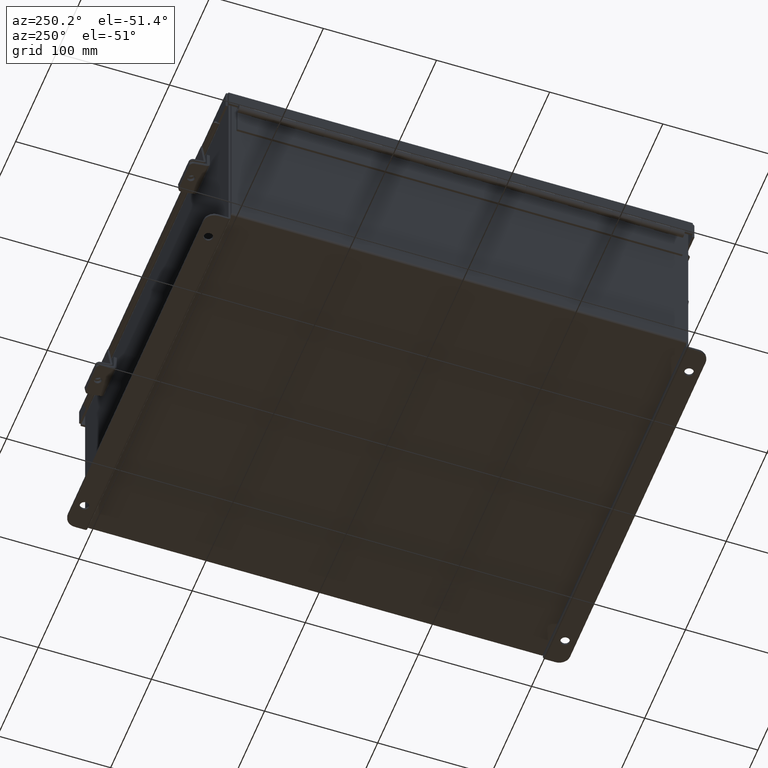
[diagram: clean part render]
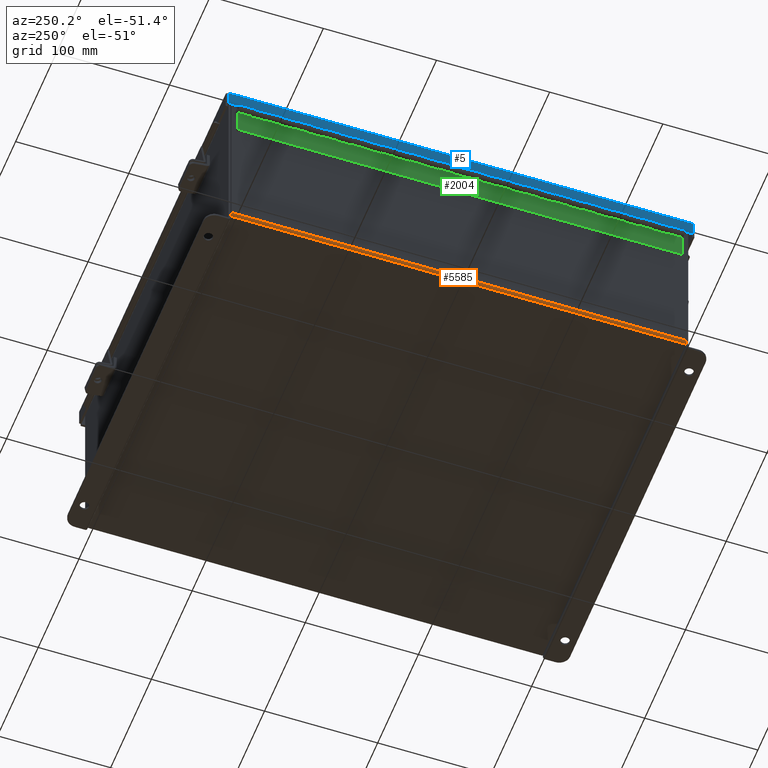
[diagram: same view with three faces highlighted in distinct colors, each labeled with its STEP entity id]
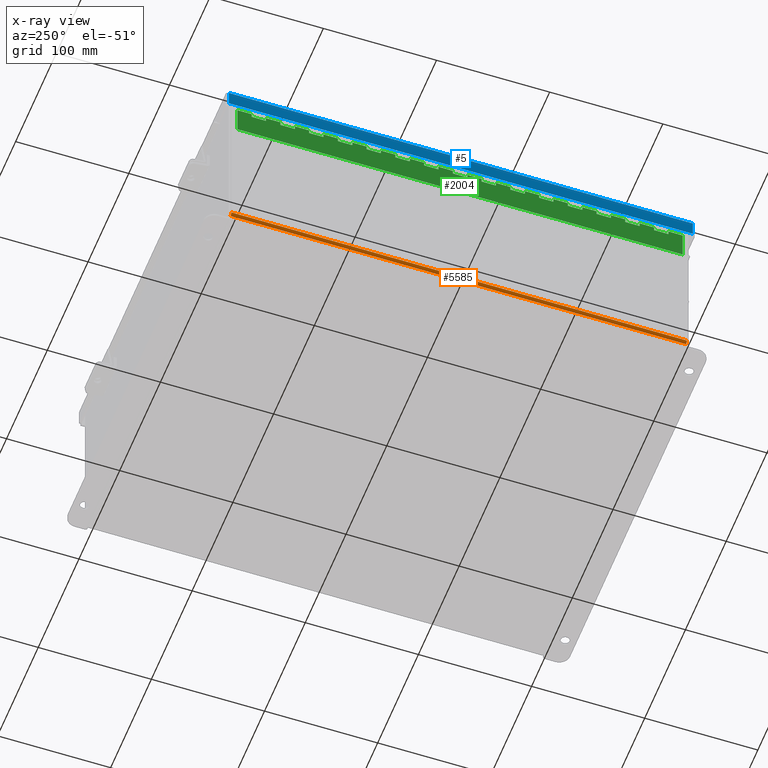
[diagram: x-ray of the same camera — body ghosted, the three highlighted faces saturated]
A machine part, auxiliary view with three faces highlighted in distinct colors.
The next image is the same camera in x-ray (body ghosted, the three faces saturated) — at least one of them is partly hidden behind the body in this view.
Their STEP definitions:

[orange] entity #5585 — the highlighted cylindrical surface (edge-blend (fillet) strip) has radius 2.2276 mm, axis along (0, -1, 0).
#46 = CIRCLE ( 'NONE', #12413, 0.08770000000000009700 ) ;
#344 = ORIENTED_EDGE ( 'NONE', *, *, #2056, .F. ) ;
#716 = ORIENTED_EDGE ( 'NONE', *, *, #1903, .T. ) ;
#849 = CARTESIAN_POINT ( 'NONE',  ( -6.912299999999999200, -7.925299999999997300, -0.07469999999999994700 ) ) ;
#977 = VECTOR ( 'NONE', #1708, 39.37007874015748100 ) ;
#1599 = VERTEX_POINT ( 'NONE', #849 ) ;
#1708 = DIRECTION ( 'NONE',  ( -0.0000000000000000000, 1.000000000000000000, -0.0000000000000000000 ) ) ;
#1779 = EDGE_CURVE ( 'NONE', #5769, #1599, #13642, .T. ) ;
#1903 = EDGE_CURVE ( 'NONE', #5769, #15856, #15826, .T. ) ;
#2056 = EDGE_CURVE ( 'NONE', #1599, #9275, #12905, .T. ) ;
#2108 = AXIS2_PLACEMENT_3D ( 'NONE', #7767, #12403, #6544 ) ;
#3784 = DIRECTION ( 'NONE',  ( -0.0000000000000000000, 1.000000000000000000, -0.0000000000000000000 ) ) ;
#3888 = CARTESIAN_POINT ( 'NONE',  ( -7.000000000000000000, 7.925300000000000900, 0.01299999999999984300 ) ) ;
#4531 = AXIS2_PLACEMENT_3D ( 'NONE', #13342, #4687, #15294 ) ;
#4687 = DIRECTION ( 'NONE',  ( 0.0000000000000000000, -1.000000000000000000, 0.0000000000000000000 ) ) ;
#5455 = ORIENTED_EDGE ( 'NONE', *, *, #13397, .F. ) ;
#5585 = ADVANCED_FACE ( 'NONE', ( #13981 ), #5708, .T. ) ;
#5708 = CYLINDRICAL_SURFACE ( 'NONE', #4531, 0.08770000000000026400 ) ;
#5769 = VERTEX_POINT ( 'NONE', #20010 ) ;
#6544 = DIRECTION ( 'NONE',  ( 0.0000000000000000000, 0.0000000000000000000, -1.000000000000000000 ) ) ;
#7001 = CARTESIAN_POINT ( 'NONE',  ( -6.912299999999999200, 7.925300000000000900, -0.07470000000000000300 ) ) ;
#7767 = CARTESIAN_POINT ( 'NONE',  ( -6.912299999999999200, -7.925299999999997300, 0.01300000000000015000 ) ) ;
#9076 = CARTESIAN_POINT ( 'NONE',  ( -6.912299999999999200, -7.925299999999998200, -0.07469999999999994700 ) ) ;
#9275 = VERTEX_POINT ( 'NONE', #7001 ) ;
#11174 = CARTESIAN_POINT ( 'NONE',  ( -7.000000000000000000, 7.925300000000000900, 0.01299999999999984300 ) ) ;
#11221 = VECTOR ( 'NONE', #16618, 39.37007874015748100 ) ;
#12190 = ORIENTED_EDGE ( 'NONE', *, *, #1779, .F. ) ;
#12403 = DIRECTION ( 'NONE',  ( 0.0000000000000000000, -1.000000000000000000, 0.0000000000000000000 ) ) ;
#12413 = AXIS2_PLACEMENT_3D ( 'NONE', #13118, #3784, #14658 ) ;
#12905 = LINE ( 'NONE', #9076, #977 ) ;
#13118 = CARTESIAN_POINT ( 'NONE',  ( -6.912299999999999200, 7.925300000000000900, 0.01300000000000015000 ) ) ;
#13342 = CARTESIAN_POINT ( 'NONE',  ( -6.912299999999999200, -7.925299999999998200, 0.01300000000000015000 ) ) ;
#13397 = EDGE_CURVE ( 'NONE', #9275, #15856, #46, .T. ) ;
#13642 = CIRCLE ( 'NONE', #2108, 0.08770000000000009700 ) ;
#13981 = FACE_OUTER_BOUND ( 'NONE', #19122, .T. ) ;
#14658 = DIRECTION ( 'NONE',  ( 0.0000000000000000000, 0.0000000000000000000, -1.000000000000000000 ) ) ;
#15294 = DIRECTION ( 'NONE',  ( -1.000000000000000000, 0.0000000000000000000, -3.553037762569317100E-015 ) ) ;
#15826 = LINE ( 'NONE', #11174, #11221 ) ;
#15856 = VERTEX_POINT ( 'NONE', #3888 ) ;
#16618 = DIRECTION ( 'NONE',  ( -0.0000000000000000000, 1.000000000000000000, -0.0000000000000000000 ) ) ;
#19122 = EDGE_LOOP ( 'NONE', ( #344, #12190, #716, #5455 ) ) ;
#20010 = CARTESIAN_POINT ( 'NONE',  ( -7.000000000000000000, -7.925299999999997300, 0.01299999999999984300 ) ) ;

[blue] entity #5 — the highlighted planar face has unit normal (1, -0, 0).
#5 = ADVANCED_FACE ( 'NONE', ( #574 ), #5855, .F. ) ;
#182 = CARTESIAN_POINT ( 'NONE',  ( 7.156250000000001800, -8.074478932188130300, 0.01300000000000010700 ) ) ;
#276 = CARTESIAN_POINT ( 'NONE',  ( 7.156250000000001800, -8.074478932188132100, 0.0000000000000000000 ) ) ;
#451 = EDGE_CURVE ( 'NONE', #1553, #2572, #1999, .T. ) ;
#574 = FACE_OUTER_BOUND ( 'NONE', #19522, .T. ) ;
#1553 = VERTEX_POINT ( 'NONE', #7329 ) ;
#1814 = LINE ( 'NONE', #17089, #17904 ) ;
#1845 = VERTEX_POINT ( 'NONE', #2193 ) ;
#1999 = LINE ( 'NONE', #5831, #17576 ) ;
#2081 = AXIS2_PLACEMENT_3D ( 'NONE', #12146, #11463, #7520 ) ;
#2193 = CARTESIAN_POINT ( 'NONE',  ( 7.156249999999994700, -8.074478932188132100, 0.5503000000000010100 ) ) ;
#2572 = VERTEX_POINT ( 'NONE', #4867 ) ;
#3131 = VERTEX_POINT ( 'NONE', #182 ) ;
#3561 = ORIENTED_EDGE ( 'NONE', *, *, #16203, .T. ) ;
#3795 = ORIENTED_EDGE ( 'NONE', *, *, #13909, .F. ) ;
#4867 = CARTESIAN_POINT ( 'NONE',  ( 7.156249999999994700, 8.074478932188135600, 0.5502999999999999000 ) ) ;
#5717 = ORIENTED_EDGE ( 'NONE', *, *, #451, .T. ) ;
#5831 = CARTESIAN_POINT ( 'NONE',  ( 7.156250000000001800, 8.074478932188135600, -2.950395833157404200E-014 ) ) ;
#5855 = PLANE ( 'NONE',  #2081 ) ;
#6820 = VECTOR ( 'NONE', #16075, 39.37007874015748100 ) ;
#7329 = CARTESIAN_POINT ( 'NONE',  ( 7.156250000000001800, 8.074478932188135600, 0.01299999999999901400 ) ) ;
#7520 = DIRECTION ( 'NONE',  ( 3.971430846686188400E-015, 0.0000000000000000000, 1.000000000000000000 ) ) ;
#8758 = ORIENTED_EDGE ( 'NONE', *, *, #13229, .F. ) ;
#9593 = DIRECTION ( 'NONE',  ( 3.971430846686188400E-015, -0.0000000000000000000, 1.000000000000000000 ) ) ;
#10758 = VECTOR ( 'NONE', #9593, 39.37007874015748100 ) ;
#11237 = LINE ( 'NONE', #276, #10758 ) ;
#11463 = DIRECTION ( 'NONE',  ( -1.000000000000000000, -1.157229917429806600E-033, 3.971430846686188400E-015 ) ) ;
#12146 = CARTESIAN_POINT ( 'NONE',  ( 7.156250000000001800, 0.0000000000000000000, -2.076204475184840000E-014 ) ) ;
#13027 = DIRECTION ( 'NONE',  ( 3.971430846686188400E-015, 0.0000000000000000000, 1.000000000000000000 ) ) ;
#13229 = EDGE_CURVE ( 'NONE', #3131, #1845, #11237, .T. ) ;
#13909 = EDGE_CURVE ( 'NONE', #1553, #3131, #18263, .T. ) ;
#14502 = CARTESIAN_POINT ( 'NONE',  ( 7.156250000000001800, -8.156249999999998200, 0.01300000000000775700 ) ) ;
#15514 = DIRECTION ( 'NONE',  ( -2.258600338820354400E-033, -1.000000000000000000, 0.0000000000000000000 ) ) ;
#16075 = DIRECTION ( 'NONE',  ( -2.258600338820354400E-033, -1.000000000000000000, -0.0000000000000000000 ) ) ;
#16203 = EDGE_CURVE ( 'NONE', #2572, #1845, #1814, .T. ) ;
#17089 = CARTESIAN_POINT ( 'NONE',  ( 7.156249999999994700, 4.268512490100411300E-018, 0.5503000000000085600 ) ) ;
#17576 = VECTOR ( 'NONE', #13027, 39.37007874015748100 ) ;
#17904 = VECTOR ( 'NONE', #15514, 39.37007874015748100 ) ;
#18263 = LINE ( 'NONE', #14502, #6820 ) ;
#19522 = EDGE_LOOP ( 'NONE', ( #3795, #5717, #3561, #8758 ) ) ;

[green] entity #2004 — the highlighted planar face has unit normal (1, -0, 0).
#30 = CARTESIAN_POINT ( 'NONE',  ( 0.2730000000000000200, 3.000000000000001800, 0.0000000000000000000 ) ) ;
#39 = CARTESIAN_POINT ( 'NONE',  ( 0.2730000000000000200, -10.00000000000000000, 0.0000000000000000000 ) ) ;
#40 = ORIENTED_EDGE ( 'NONE', *, *, #13085, .T. ) ;
#43 = EDGE_CURVE ( 'NONE', #11994, #7878, #8364, .T. ) ;
#89 = VERTEX_POINT ( 'NONE', #9890 ) ;
#100 = DIRECTION ( 'NONE',  ( -1.000000000000000000, -8.005415366049128100E-015, 0.0000000000000000000 ) ) ;
#124 = DIRECTION ( 'NONE',  ( -1.000000000000000000, -8.005415366049128100E-015, 0.0000000000000000000 ) ) ;
#126 = LINE ( 'NONE', #19448, #11568 ) ;
#136 = DIRECTION ( 'NONE',  ( -1.000000000000000000, -8.005415366049128100E-015, 0.0000000000000000000 ) ) ;
#153 = VERTEX_POINT ( 'NONE', #7104 ) ;
#172 = CARTESIAN_POINT ( 'NONE',  ( 0.1365000000000000100, 9.500000000000003600, -1.707404996040164500E-017 ) ) ;
#175 = CARTESIAN_POINT ( 'NONE',  ( 0.2730000000000000200, -11.00000000000000000, 0.0000000000000000000 ) ) ;
#203 = LINE ( 'NONE', #9771, #12126 ) ;
#207 = VERTEX_POINT ( 'NONE', #15054 ) ;
#259 = EDGE_CURVE ( 'NONE', #13324, #3139, #2253, .T. ) ;
#284 = CARTESIAN_POINT ( 'NONE',  ( 0.1365000000000000100, 0.0000000000000000000, -1.707404996040164500E-017 ) ) ;
#286 = EDGE_CURVE ( 'NONE', #13746, #8731, #8598, .T. ) ;
#296 = CARTESIAN_POINT ( 'NONE',  ( 0.1365000000000000100, 0.0000000000000000000, -1.707404996040164500E-017 ) ) ;
#410 = VERTEX_POINT ( 'NONE', #5342 ) ;
#483 = VECTOR ( 'NONE', #6430, 39.37007874015748100 ) ;
#519 = EDGE_CURVE ( 'NONE', #207, #10403, #4673, .T. ) ;
#559 = DIRECTION ( 'NONE',  ( 0.0000000000000000000, 1.000000000000000000, 0.0000000000000000000 ) ) ;
#589 = CARTESIAN_POINT ( 'NONE',  ( 0.0000000000000000000, 7.000000000000000900, 0.0000000000000000000 ) ) ;
#629 = LINE ( 'NONE', #18326, #4261 ) ;
#838 = LINE ( 'NONE', #1160, #12760 ) ;
#888 = CARTESIAN_POINT ( 'NONE',  ( 0.2730000000000000200, 4.000000000000000900, 0.0000000000000000000 ) ) ;
#898 = DIRECTION ( 'NONE',  ( -1.000000000000000000, 0.0000000000000000000, 0.0000000000000000000 ) ) ;
#952 = EDGE_CURVE ( 'NONE', #7608, #17030, #5153, .T. ) ;
#1010 = VECTOR ( 'NONE', #1024, 39.37007874015748100 ) ;
#1024 = DIRECTION ( 'NONE',  ( -1.000000000000000000, 0.0000000000000000000, 0.0000000000000000000 ) ) ;
#1089 = ORIENTED_EDGE ( 'NONE', *, *, #2022, .T. ) ;
#1100 = LINE ( 'NONE', #175, #9400 ) ;
#1102 = LINE ( 'NONE', #8889, #4746 ) ;
#1131 = DIRECTION ( 'NONE',  ( -1.000000000000000000, -8.005415366049128100E-015, 0.0000000000000000000 ) ) ;
#1150 = CARTESIAN_POINT ( 'NONE',  ( 0.2730000000000000200, 11.50000000000000400, 0.0000000000000000000 ) ) ;
#1160 = CARTESIAN_POINT ( 'NONE',  ( 0.0000000000000000000, 3.000000000000001800, 0.0000000000000000000 ) ) ;
#1169 = EDGE_CURVE ( 'NONE', #9051, #6825, #17806, .T. ) ;
#1179 = DIRECTION ( 'NONE',  ( 0.0000000000000000000, 1.000000000000000000, 0.0000000000000000000 ) ) ;
#1219 = VERTEX_POINT ( 'NONE', #16652 ) ;
#1241 = VECTOR ( 'NONE', #12223, 39.37007874015748100 ) ;
#1246 = CARTESIAN_POINT ( 'NONE',  ( 0.2730000000000000200, 5.000000000000000000, 0.0000000000000000000 ) ) ;
#1250 = EDGE_CURVE ( 'NONE', #4960, #17551, #16333, .T. ) ;
#1339 = LINE ( 'NONE', #1635, #17385 ) ;
#1376 = ORIENTED_EDGE ( 'NONE', *, *, #5103, .F. ) ;
#1407 = ORIENTED_EDGE ( 'NONE', *, *, #4948, .T. ) ;
#1419 = DIRECTION ( 'NONE',  ( 0.0000000000000000000, 1.000000000000000000, 0.0000000000000000000 ) ) ;
#1434 = VERTEX_POINT ( 'NONE', #2012 ) ;
#1612 = LINE ( 'NONE', #14785, #19977 ) ;
#1635 = CARTESIAN_POINT ( 'NONE',  ( -1.160785228077123600E-013, 11.50000000000000200, 0.0000000000000000000 ) ) ;
#1684 = EDGE_CURVE ( 'NONE', #4704, #10919, #12187, .T. ) ;
#1755 = ORIENTED_EDGE ( 'NONE', *, *, #1250, .F. ) ;
#1769 = LINE ( 'NONE', #3251, #13708 ) ;
#1773 = CARTESIAN_POINT ( 'NONE',  ( 0.1365000000000000100, 6.000000000000000900, -1.707404996040164500E-017 ) ) ;
#1835 = CARTESIAN_POINT ( 'NONE',  ( 0.2730000000000000200, 6.500000000000003600, 0.0000000000000000000 ) ) ;
#1967 = DIRECTION ( 'NONE',  ( 0.0000000000000000000, 1.000000000000000000, 0.0000000000000000000 ) ) ;
#2004 = ADVANCED_FACE ( 'NONE', ( #14341 ), #4089, .F. ) ;
#2012 = CARTESIAN_POINT ( 'NONE',  ( 0.2730000000000000200, 12.50000000000000400, 0.0000000000000000000 ) ) ;
#2016 = VECTOR ( 'NONE', #11640, 39.37007874015748100 ) ;
#2022 = EDGE_CURVE ( 'NONE', #13746, #2034, #5115, .T. ) ;
#2034 = VERTEX_POINT ( 'NONE', #172 ) ;
#2107 = ORIENTED_EDGE ( 'NONE', *, *, #2559, .F. ) ;
#2253 = LINE ( 'NONE', #39, #9091 ) ;
#2269 = ORIENTED_EDGE ( 'NONE', *, *, #17512, .T. ) ;
#2277 = CARTESIAN_POINT ( 'NONE',  ( 0.2730000000000000200, -2.999999999999999600, 0.0000000000000000000 ) ) ;
#2406 = CARTESIAN_POINT ( 'NONE',  ( 0.1365000000000000100, 12.50000000000000400, -1.707404996040164500E-017 ) ) ;
#2456 = CARTESIAN_POINT ( 'NONE',  ( 0.2730000000000000200, -11.99999999999999800, 0.0000000000000000000 ) ) ;
#2559 = EDGE_CURVE ( 'NONE', #1219, #3700, #17504, .T. ) ;
#2640 = LINE ( 'NONE', #12565, #18687 ) ;
#2650 = CARTESIAN_POINT ( 'NONE',  ( 0.2730000000000000200, 1.500000000000003100, 0.0000000000000000000 ) ) ;
#2785 = CARTESIAN_POINT ( 'NONE',  ( -1.160785228077123600E-013, 7.500000000000001800, 0.0000000000000000000 ) ) ;
#2935 = CARTESIAN_POINT ( 'NONE',  ( 0.2730000000000000200, 12.00000000000000200, 0.0000000000000000000 ) ) ;
#3034 = ORIENTED_EDGE ( 'NONE', *, *, #14555, .F. ) ;
#3035 = VERTEX_POINT ( 'NONE', #1773 ) ;
#3139 = VERTEX_POINT ( 'NONE', #1246 ) ;
#3140 = EDGE_CURVE ( 'NONE', #8731, #6846, #2640, .T. ) ;
#3145 = ORIENTED_EDGE ( 'NONE', *, *, #4499, .F. ) ;
#3251 = CARTESIAN_POINT ( 'NONE',  ( 0.1365000000000000100, 0.0000000000000000000, -1.707404996040164500E-017 ) ) ;
#3405 = ORIENTED_EDGE ( 'NONE', *, *, #10594, .T. ) ;
#3451 = LINE ( 'NONE', #4744, #13932 ) ;
#3454 = VECTOR ( 'NONE', #10887, 39.37007874015748100 ) ;
#3495 = EDGE_CURVE ( 'NONE', #19503, #18523, #9215, .T. ) ;
#3523 = CARTESIAN_POINT ( 'NONE',  ( 0.2730000000000000200, -8.000000000000000000, 0.0000000000000000000 ) ) ;
#3544 = VERTEX_POINT ( 'NONE', #7688 ) ;
#3592 = LINE ( 'NONE', #11860, #4590 ) ;
#3599 = DIRECTION ( 'NONE',  ( 0.0000000000000000000, 1.000000000000000000, 0.0000000000000000000 ) ) ;
#3642 = CARTESIAN_POINT ( 'NONE',  ( 0.2730000000000000200, 1.000000000000001300, 0.0000000000000000000 ) ) ;
#3651 = CARTESIAN_POINT ( 'NONE',  ( 0.2730000000000000200, 0.0000000000000000000, 0.0000000000000000000 ) ) ;
#3655 = CARTESIAN_POINT ( 'NONE',  ( 0.1365000000000000100, 2.000000000000000400, -1.707404996040164500E-017 ) ) ;
#3681 = VERTEX_POINT ( 'NONE', #9161 ) ;
#3700 = VERTEX_POINT ( 'NONE', #6289 ) ;
#3779 = EDGE_CURVE ( 'NONE', #19364, #4769, #203, .T. ) ;
#3851 = VECTOR ( 'NONE', #5110, 39.37007874015748100 ) ;
#3946 = LINE ( 'NONE', #9483, #15890 ) ;
#3955 = VECTOR ( 'NONE', #7658, 39.37007874015748100 ) ;
#4089 = PLANE ( 'NONE',  #6954 ) ;
#4104 = CARTESIAN_POINT ( 'NONE',  ( 0.2730000000000000200, 8.000000000000001800, 0.0000000000000000000 ) ) ;
#4138 = VERTEX_POINT ( 'NONE', #14293 ) ;
#4247 = VERTEX_POINT ( 'NONE', #14226 ) ;
#4261 = VECTOR ( 'NONE', #19898, 39.37007874015748100 ) ;
#4311 = DIRECTION ( 'NONE',  ( -1.000000000000000000, 0.0000000000000000000, 0.0000000000000000000 ) ) ;
#4390 = VERTEX_POINT ( 'NONE', #10937 ) ;
#4493 = LINE ( 'NONE', #296, #13266 ) ;
#4499 = EDGE_CURVE ( 'NONE', #20013, #4960, #5020, .T. ) ;
#4535 = EDGE_CURVE ( 'NONE', #19804, #3700, #4537, .T. ) ;
#4537 = LINE ( 'NONE', #8707, #11861 ) ;
#4568 = CARTESIAN_POINT ( 'NONE',  ( -1.160785228077123600E-013, 14.50000000000000200, 0.0000000000000000000 ) ) ;
#4590 = VECTOR ( 'NONE', #19657, 39.37007874015748100 ) ;
#4617 = ORIENTED_EDGE ( 'NONE', *, *, #6368, .F. ) ;
#4641 = EDGE_CURVE ( 'NONE', #89, #4247, #14493, .T. ) ;
#4662 = VERTEX_POINT ( 'NONE', #16920 ) ;
#4673 = LINE ( 'NONE', #589, #12475 ) ;
#4704 = VERTEX_POINT ( 'NONE', #3655 ) ;
#4744 = CARTESIAN_POINT ( 'NONE',  ( 0.2730000000000000200, -7.000000000000000000, 0.0000000000000000000 ) ) ;
#4746 = VECTOR ( 'NONE', #11889, 39.37007874015748100 ) ;
#4769 = VERTEX_POINT ( 'NONE', #7650 ) ;
#4921 = VECTOR ( 'NONE', #11555, 39.37007874015748100 ) ;
#4940 = LINE ( 'NONE', #14840, #13217 ) ;
#4948 = EDGE_CURVE ( 'NONE', #3544, #13154, #16450, .T. ) ;
#4960 = VERTEX_POINT ( 'NONE', #7945 ) ;
#4982 = VERTEX_POINT ( 'NONE', #13622 ) ;
#5020 = LINE ( 'NONE', #9237, #17426 ) ;
#5060 = VECTOR ( 'NONE', #4311, 39.37007874015748100 ) ;
#5061 = EDGE_CURVE ( 'NONE', #15208, #4662, #10861, .T. ) ;
#5103 = EDGE_CURVE ( 'NONE', #14365, #7608, #1100, .T. ) ;
#5110 = DIRECTION ( 'NONE',  ( 0.0000000000000000000, 1.000000000000000000, 0.0000000000000000000 ) ) ;
#5115 = LINE ( 'NONE', #8810, #17048 ) ;
#5153 = LINE ( 'NONE', #18909, #1010 ) ;
#5252 = DIRECTION ( 'NONE',  ( 0.0000000000000000000, 1.000000000000000000, 0.0000000000000000000 ) ) ;
#5288 = VECTOR ( 'NONE', #17774, 39.37007874015748100 ) ;
#5303 = ORIENTED_EDGE ( 'NONE', *, *, #16754, .F. ) ;
#5342 = CARTESIAN_POINT ( 'NONE',  ( 0.1365000000000000100, 8.500000000000003600, -1.707404996040164500E-017 ) ) ;
#5402 = LINE ( 'NONE', #2456, #15137 ) ;
#5427 = DIRECTION ( 'NONE',  ( -1.000000000000000000, -8.005415366049128100E-015, 0.0000000000000000000 ) ) ;
#5512 = EDGE_CURVE ( 'NONE', #14882, #20139, #11317, .T. ) ;
#5565 = CARTESIAN_POINT ( 'NONE',  ( 0.2730000000000000200, -14.00000000000000000, 0.0000000000000000000 ) ) ;
#5676 = ORIENTED_EDGE ( 'NONE', *, *, #43, .F. ) ;
#5693 = EDGE_CURVE ( 'NONE', #17030, #4390, #8393, .T. ) ;
#5710 = CARTESIAN_POINT ( 'NONE',  ( 0.1365000000000000100, 13.50000000000000400, -1.707404996040164500E-017 ) ) ;
#5738 = DIRECTION ( 'NONE',  ( -1.000000000000000000, 0.0000000000000000000, -0.0000000000000000000 ) ) ;
#5803 = LINE ( 'NONE', #2785, #9948 ) ;
#5814 = EDGE_CURVE ( 'NONE', #10263, #153, #18361, .T. ) ;
#5835 = ORIENTED_EDGE ( 'NONE', *, *, #3495, .F. ) ;
#5849 = VECTOR ( 'NONE', #20134, 39.37007874015748100 ) ;
#5886 = DIRECTION ( 'NONE',  ( 0.0000000000000000000, 1.000000000000000000, 0.0000000000000000000 ) ) ;
#5938 = VECTOR ( 'NONE', #7828, 39.37007874015748100 ) ;
#5959 = CARTESIAN_POINT ( 'NONE',  ( 0.0000000000000000000, 11.00000000000000000, 0.0000000000000000000 ) ) ;
#5973 = CARTESIAN_POINT ( 'NONE',  ( 1.136500000000000100, 0.0000000000000000000, 0.0000000000000000000 ) ) ;
#6057 = CARTESIAN_POINT ( 'NONE',  ( 0.1365000000000000100, 0.0000000000000000000, -1.707404996040164500E-017 ) ) ;
#6103 = DIRECTION ( 'NONE',  ( -1.000000000000000000, 0.0000000000000000000, 0.0000000000000000000 ) ) ;
#6120 = CARTESIAN_POINT ( 'NONE',  ( 0.0000000000000000000, 6.000000000000000900, 0.0000000000000000000 ) ) ;
#6187 = VERTEX_POINT ( 'NONE', #17693 ) ;
#6212 = VERTEX_POINT ( 'NONE', #8169 ) ;
#6219 = VECTOR ( 'NONE', #6550, 39.37007874015748100 ) ;
#6289 = CARTESIAN_POINT ( 'NONE',  ( 0.1365000000000000100, 1.500000000000003100, -1.707404996040164500E-017 ) ) ;
#6346 = CARTESIAN_POINT ( 'NONE',  ( 0.2730000000000000200, 9.500000000000003600, 0.0000000000000000000 ) ) ;
#6368 = EDGE_CURVE ( 'NONE', #6846, #13154, #1769, .T. ) ;
#6401 = EDGE_CURVE ( 'NONE', #10403, #17202, #9584, .T. ) ;
#6430 = DIRECTION ( 'NONE',  ( 0.0000000000000000000, 1.000000000000000000, 0.0000000000000000000 ) ) ;
#6462 = EDGE_CURVE ( 'NONE', #6825, #4982, #3946, .T. ) ;
#6493 = EDGE_CURVE ( 'NONE', #6187, #2034, #11777, .T. ) ;
#6497 = VERTEX_POINT ( 'NONE', #13799 ) ;
#6550 = DIRECTION ( 'NONE',  ( 1.000000000000000000, 0.0000000000000000000, 0.0000000000000000000 ) ) ;
#6552 = CARTESIAN_POINT ( 'NONE',  ( 0.2730000000000000200, 2.500000000000004400, 0.0000000000000000000 ) ) ;
#6576 = EDGE_CURVE ( 'NONE', #14107, #8319, #3451, .T. ) ;
#6656 = CARTESIAN_POINT ( 'NONE',  ( 0.0000000000000000000, 8.000000000000001800, 0.0000000000000000000 ) ) ;
#6659 = LINE ( 'NONE', #14747, #19058 ) ;
#6679 = CARTESIAN_POINT ( 'NONE',  ( 0.1365000000000000100, 2.500000000000004400, -1.707404996040164500E-017 ) ) ;
#6712 = ORIENTED_EDGE ( 'NONE', *, *, #13963, .T. ) ;
#6825 = VERTEX_POINT ( 'NONE', #18961 ) ;
#6835 = DIRECTION ( 'NONE',  ( -1.000000000000000000, -8.005415366049128100E-015, 0.0000000000000000000 ) ) ;
#6846 = VERTEX_POINT ( 'NONE', #18252 ) ;
#6896 = CARTESIAN_POINT ( 'NONE',  ( 0.0000000000000000000, 12.00000000000000200, 0.0000000000000000000 ) ) ;
#6927 = CARTESIAN_POINT ( 'NONE',  ( 0.1365000000000000100, 0.0000000000000000000, -1.707404996040164500E-017 ) ) ;
#6954 = AXIS2_PLACEMENT_3D ( 'NONE', #16695, #12595, #5738 ) ;
#7104 = CARTESIAN_POINT ( 'NONE',  ( 0.1365000000000000100, 15.00000000000000000, -1.707404996040164500E-017 ) ) ;
#7118 = CARTESIAN_POINT ( 'NONE',  ( 0.2730000000000000200, -5.999999999999999100, 0.0000000000000000000 ) ) ;
#7145 = DIRECTION ( 'NONE',  ( 0.0000000000000000000, 1.000000000000000000, 0.0000000000000000000 ) ) ;
#7187 = VECTOR ( 'NONE', #559, 39.37007874015748100 ) ;
#7209 = VECTOR ( 'NONE', #19966, 39.37007874015748100 ) ;
#7387 = VERTEX_POINT ( 'NONE', #1150 ) ;
#7431 = ORIENTED_EDGE ( 'NONE', *, *, #6401, .F. ) ;
#7445 = LINE ( 'NONE', #18459, #19339 ) ;
#7512 = CARTESIAN_POINT ( 'NONE',  ( 0.1365000000000000100, 0.0000000000000000000, -1.707404996040164500E-017 ) ) ;
#7539 = CARTESIAN_POINT ( 'NONE',  ( 0.1365000000000000100, 13.00000000000000000, -1.707404996040164500E-017 ) ) ;
#7582 = CARTESIAN_POINT ( 'NONE',  ( 0.1365000000000000100, 0.0000000000000000000, -1.707404996040164500E-017 ) ) ;
#7588 = DIRECTION ( 'NONE',  ( -1.000000000000000000, 0.0000000000000000000, 0.0000000000000000000 ) ) ;
#7608 = VERTEX_POINT ( 'NONE', #888 ) ;
#7618 = ORIENTED_EDGE ( 'NONE', *, *, #3779, .T. ) ;
#7650 = CARTESIAN_POINT ( 'NONE',  ( 0.1365000000000000100, 0.5000000000000040000, -1.707404996040164500E-017 ) ) ;
#7658 = DIRECTION ( 'NONE',  ( 0.0000000000000000000, 1.000000000000000000, 0.0000000000000000000 ) ) ;
#7688 = CARTESIAN_POINT ( 'NONE',  ( 0.2730000000000000200, 10.50000000000000200, 0.0000000000000000000 ) ) ;
#7694 = CARTESIAN_POINT ( 'NONE',  ( 0.2730000000000000200, 9.000000000000001800, 0.0000000000000000000 ) ) ;
#7698 = ORIENTED_EDGE ( 'NONE', *, *, #11006, .F. ) ;
#7722 = ORIENTED_EDGE ( 'NONE', *, *, #12484, .T. ) ;
#7744 = VECTOR ( 'NONE', #7145, 39.37007874015748100 ) ;
#7771 = ORIENTED_EDGE ( 'NONE', *, *, #4535, .T. ) ;
#7828 = DIRECTION ( 'NONE',  ( -1.000000000000000000, 0.0000000000000000000, 0.0000000000000000000 ) ) ;
#7878 = VERTEX_POINT ( 'NONE', #7694 ) ;
#7908 = DIRECTION ( 'NONE',  ( -1.000000000000000000, -8.005415366049128100E-015, 0.0000000000000000000 ) ) ;
#7944 = DIRECTION ( 'NONE',  ( 0.0000000000000000000, 1.000000000000000000, 0.0000000000000000000 ) ) ;
#7945 = CARTESIAN_POINT ( 'NONE',  ( 0.2730000000000000200, 14.00000000000000200, 0.0000000000000000000 ) ) ;
#8045 = VECTOR ( 'NONE', #11937, 39.37007874015748100 ) ;
#8081 = CARTESIAN_POINT ( 'NONE',  ( 0.1365000000000000100, 15.50000000000000000, -1.707404996040164500E-017 ) ) ;
#8116 = ORIENTED_EDGE ( 'NONE', *, *, #16581, .F. ) ;
#8169 = CARTESIAN_POINT ( 'NONE',  ( 0.1365000000000000100, 8.000000000000001800, -1.707404996040164500E-017 ) ) ;
#8224 = VERTEX_POINT ( 'NONE', #2406 ) ;
#8234 = CARTESIAN_POINT ( 'NONE',  ( 0.1365000000000000100, 4.000000000000000900, -1.707404996040164500E-017 ) ) ;
#8252 = CARTESIAN_POINT ( 'NONE',  ( 0.0000000000000000000, 13.00000000000000000, 0.0000000000000000000 ) ) ;
#8319 = VERTEX_POINT ( 'NONE', #4104 ) ;
#8327 = ORIENTED_EDGE ( 'NONE', *, *, #15323, .F. ) ;
#8337 = LINE ( 'NONE', #15374, #3955 ) ;
#8364 = LINE ( 'NONE', #7118, #12975 ) ;
#8393 = LINE ( 'NONE', #284, #16165 ) ;
#8551 = CARTESIAN_POINT ( 'NONE',  ( 0.1365000000000000100, 7.000000000000000900, -1.707404996040164500E-017 ) ) ;
#8567 = VECTOR ( 'NONE', #16864, 39.37007874015748100 ) ;
#8598 = LINE ( 'NONE', #16562, #16372 ) ;
#8706 = ORIENTED_EDGE ( 'NONE', *, *, #5061, .F. ) ;
#8707 = CARTESIAN_POINT ( 'NONE',  ( -1.160785228077123600E-013, 1.500000000000000900, 0.0000000000000000000 ) ) ;
#8731 = VERTEX_POINT ( 'NONE', #11253 ) ;
#8810 = CARTESIAN_POINT ( 'NONE',  ( -1.160785228077123600E-013, 9.500000000000000000, 0.0000000000000000000 ) ) ;
#8816 = ORIENTED_EDGE ( 'NONE', *, *, #12118, .F. ) ;
#8847 = VECTOR ( 'NONE', #17021, 39.37007874015748100 ) ;
#8889 = CARTESIAN_POINT ( 'NONE',  ( 0.1365000000000000100, 0.0000000000000000000, -1.707404996040164500E-017 ) ) ;
#8907 = CARTESIAN_POINT ( 'NONE',  ( -1.160785228077123600E-013, 2.500000000000002200, 0.0000000000000000000 ) ) ;
#8929 = EDGE_CURVE ( 'NONE', #10072, #6497, #9434, .T. ) ;
#9005 = DIRECTION ( 'NONE',  ( 0.0000000000000000000, 1.000000000000000000, 0.0000000000000000000 ) ) ;
#9015 = DIRECTION ( 'NONE',  ( -1.000000000000000000, -8.005415366049128100E-015, 0.0000000000000000000 ) ) ;
#9051 = VERTEX_POINT ( 'NONE', #9589 ) ;
#9091 = VECTOR ( 'NONE', #13624, 39.37007874015748100 ) ;
#9093 = CARTESIAN_POINT ( 'NONE',  ( -1.160785228077123600E-013, 12.50000000000000000, 0.0000000000000000000 ) ) ;
#9102 = ORIENTED_EDGE ( 'NONE', *, *, #16319, .F. ) ;
#9134 = ORIENTED_EDGE ( 'NONE', *, *, #15126, .F. ) ;
#9161 = CARTESIAN_POINT ( 'NONE',  ( 0.2730000000000000200, 5.500000000000002700, 0.0000000000000000000 ) ) ;
#9215 = LINE ( 'NONE', #8252, #5060 ) ;
#9237 = CARTESIAN_POINT ( 'NONE',  ( 0.2730000000000000200, -1.000000000000000000, 0.0000000000000000000 ) ) ;
#9252 = EDGE_CURVE ( 'NONE', #6497, #8224, #12807, .T. ) ;
#9309 = VERTEX_POINT ( 'NONE', #11637 ) ;
#9337 = LINE ( 'NONE', #18724, #17106 ) ;
#9363 = EDGE_LOOP ( 'NONE', ( #7618, #9102, #14088, #40, #10967, #7698, #15724, #14232, #13783, #19353, #1755, #3145, #10476, #12644, #5835, #16817, #3405, #14286, #16799, #20154, #14092, #18437, #19996, #10949, #1407, #4617, #11215, #19894, #1089, #18846, #12783, #5676, #2269, #8116, #9134, #12043, #13501, #7431, #11830, #3034, #13749, #13273, #15190, #16196, #6712, #13285, #17685, #15225, #7722, #12336, #18429, #1376, #12593, #8706, #5303, #13418, #19162, #14520, #9679, #11940, #7771, #2107, #8816, #8327 ) ) ;
#9396 = CARTESIAN_POINT ( 'NONE',  ( 0.2730000000000000200, 13.50000000000000400, 0.0000000000000000000 ) ) ;
#9400 = VECTOR ( 'NONE', #1179, 39.37007874015748100 ) ;
#9434 = LINE ( 'NONE', #6896, #5288 ) ;
#9483 = CARTESIAN_POINT ( 'NONE',  ( 0.1365000000000000100, 0.0000000000000000000, -1.707404996040164500E-017 ) ) ;
#9513 = VECTOR ( 'NONE', #6835, 39.37007874015748100 ) ;
#9584 = LINE ( 'NONE', #18644, #13218 ) ;
#9589 = CARTESIAN_POINT ( 'NONE',  ( 0.2730000000000000200, 11.00000000000000000, 0.0000000000000000000 ) ) ;
#9617 = DIRECTION ( 'NONE',  ( 0.0000000000000000000, 1.000000000000000000, 0.0000000000000000000 ) ) ;
#9672 = CARTESIAN_POINT ( 'NONE',  ( 0.1365000000000000100, 14.50000000000000400, -1.707404996040164500E-017 ) ) ;
#9679 = ORIENTED_EDGE ( 'NONE', *, *, #14679, .F. ) ;
#9687 = CARTESIAN_POINT ( 'NONE',  ( 0.2730000000000000200, 15.00000000000000000, 0.0000000000000000000 ) ) ;
#9723 = VECTOR ( 'NONE', #10009, 39.37007874015748100 ) ;
#9763 = VERTEX_POINT ( 'NONE', #12681 ) ;
#9771 = CARTESIAN_POINT ( 'NONE',  ( -1.160785228077123600E-013, 0.5000000000000017800, 0.0000000000000000000 ) ) ;
#9792 = CARTESIAN_POINT ( 'NONE',  ( 0.2730000000000000200, 4.500000000000002700, 0.0000000000000000000 ) ) ;
#9890 = CARTESIAN_POINT ( 'NONE',  ( 0.1364999999999999000, 0.0000000000000000000, 0.0000000000000000000 ) ) ;
#9930 = CARTESIAN_POINT ( 'NONE',  ( 0.1365000000000000100, 3.000000000000001800, -1.707404996040164500E-017 ) ) ;
#9948 = VECTOR ( 'NONE', #12124, 39.37007874015748100 ) ;
#9973 = CARTESIAN_POINT ( 'NONE',  ( -1.160785228077123600E-013, 13.50000000000000200, 0.0000000000000000000 ) ) ;
#10009 = DIRECTION ( 'NONE',  ( -1.000000000000000000, 0.0000000000000000000, 0.0000000000000000000 ) ) ;
#10072 = VERTEX_POINT ( 'NONE', #2935 ) ;
#10263 = VERTEX_POINT ( 'NONE', #9687 ) ;
#10265 = VECTOR ( 'NONE', #10641, 39.37007874015748100 ) ;
#10308 = LINE ( 'NONE', #2277, #2016 ) ;
#10338 = LINE ( 'NONE', #11453, #7187 ) ;
#10367 = EDGE_CURVE ( 'NONE', #3035, #13717, #10338, .T. ) ;
#10403 = VERTEX_POINT ( 'NONE', #8551 ) ;
#10476 = ORIENTED_EDGE ( 'NONE', *, *, #17746, .T. ) ;
#10487 = CARTESIAN_POINT ( 'NONE',  ( 1.136500000000000100, 15.50000000000000000, 0.0000000000000000000 ) ) ;
#10490 = DIRECTION ( 'NONE',  ( -1.000000000000000000, 0.0000000000000000000, 0.0000000000000000000 ) ) ;
#10594 = EDGE_CURVE ( 'NONE', #1434, #8224, #11839, .T. ) ;
#10641 = DIRECTION ( 'NONE',  ( 0.0000000000000000000, 1.000000000000000000, 0.0000000000000000000 ) ) ;
#10711 = CARTESIAN_POINT ( 'NONE',  ( -1.160785228077123600E-013, 10.50000000000000200, 0.0000000000000000000 ) ) ;
#10760 = CARTESIAN_POINT ( 'NONE',  ( 0.1365000000000000100, 5.500000000000002700, -1.707404996040164500E-017 ) ) ;
#10861 = LINE ( 'NONE', #6057, #18627 ) ;
#10887 = DIRECTION ( 'NONE',  ( -1.000000000000000000, -8.005415366049128100E-015, 0.0000000000000000000 ) ) ;
#10911 = DIRECTION ( 'NONE',  ( 0.0000000000000000000, 1.000000000000000000, 0.0000000000000000000 ) ) ;
#10919 = VERTEX_POINT ( 'NONE', #6679 ) ;
#10937 = CARTESIAN_POINT ( 'NONE',  ( 0.1365000000000000100, 4.500000000000002700, -1.707404996040164500E-017 ) ) ;
#10949 = ORIENTED_EDGE ( 'NONE', *, *, #18070, .F. ) ;
#10967 = ORIENTED_EDGE ( 'NONE', *, *, #5512, .T. ) ;
#11003 = CARTESIAN_POINT ( 'NONE',  ( 0.1365000000000000100, 6.500000000000003600, -1.707404996040164500E-017 ) ) ;
#11006 = EDGE_CURVE ( 'NONE', #153, #20139, #11091, .T. ) ;
#11091 = LINE ( 'NONE', #11606, #18383 ) ;
#11167 = LINE ( 'NONE', #6656, #11665 ) ;
#11215 = ORIENTED_EDGE ( 'NONE', *, *, #3140, .F. ) ;
#11253 = CARTESIAN_POINT ( 'NONE',  ( 0.2730000000000000200, 10.00000000000000000, 0.0000000000000000000 ) ) ;
#11256 = LINE ( 'NONE', #3651, #19018 ) ;
#11279 = VECTOR ( 'NONE', #11302, 39.37007874015748100 ) ;
#11302 = DIRECTION ( 'NONE',  ( 0.0000000000000000000, 1.000000000000000000, 0.0000000000000000000 ) ) ;
#11317 = LINE ( 'NONE', #18957, #19580 ) ;
#11453 = CARTESIAN_POINT ( 'NONE',  ( 0.1365000000000000100, 0.0000000000000000000, -1.707404996040164500E-017 ) ) ;
#11472 = CARTESIAN_POINT ( 'NONE',  ( 0.2730000000000000200, 8.500000000000003600, 0.0000000000000000000 ) ) ;
#11476 = CARTESIAN_POINT ( 'NONE',  ( -1.160785228077123600E-013, 5.500000000000000900, 0.0000000000000000000 ) ) ;
#11535 = VECTOR ( 'NONE', #1131, 39.37007874015748100 ) ;
#11551 = VERTEX_POINT ( 'NONE', #9672 ) ;
#11555 = DIRECTION ( 'NONE',  ( -1.000000000000000000, -8.005415366049128100E-015, 0.0000000000000000000 ) ) ;
#11568 = VECTOR ( 'NONE', #14761, 39.37007874015748100 ) ;
#11606 = CARTESIAN_POINT ( 'NONE',  ( 0.1365000000000000100, 0.0000000000000000000, -1.707404996040164500E-017 ) ) ;
#11637 = CARTESIAN_POINT ( 'NONE',  ( 0.2730000000000000200, 14.50000000000000400, 0.0000000000000000000 ) ) ;
#11640 = DIRECTION ( 'NONE',  ( 0.0000000000000000000, 1.000000000000000000, 0.0000000000000000000 ) ) ;
#11665 = VECTOR ( 'NONE', #17529, 39.37007874015748100 ) ;
#11672 = CARTESIAN_POINT ( 'NONE',  ( 0.0000000000000000000, 15.00000000000000000, 0.0000000000000000000 ) ) ;
#11674 = CARTESIAN_POINT ( 'NONE',  ( 0.2730000000000000200, 2.000000000000000400, 0.0000000000000000000 ) ) ;
#11734 = EDGE_CURVE ( 'NONE', #14365, #4662, #6659, .T. ) ;
#11749 = DIRECTION ( 'NONE',  ( 0.0000000000000000000, 1.000000000000000000, 0.0000000000000000000 ) ) ;
#11777 = LINE ( 'NONE', #12237, #11279 ) ;
#11830 = ORIENTED_EDGE ( 'NONE', *, *, #519, .F. ) ;
#11839 = LINE ( 'NONE', #9093, #7209 ) ;
#11860 = CARTESIAN_POINT ( 'NONE',  ( 0.1365000000000000100, 0.0000000000000000000, -1.707404996040164500E-017 ) ) ;
#11861 = VECTOR ( 'NONE', #15658, 39.37007874015748100 ) ;
#11889 = DIRECTION ( 'NONE',  ( 0.0000000000000000000, 1.000000000000000000, 0.0000000000000000000 ) ) ;
#11937 = DIRECTION ( 'NONE',  ( 0.0000000000000000000, 1.000000000000000000, 0.0000000000000000000 ) ) ;
#11940 = ORIENTED_EDGE ( 'NONE', *, *, #15866, .F. ) ;
#11970 = DIRECTION ( 'NONE',  ( -1.000000000000000000, 0.0000000000000000000, 0.0000000000000000000 ) ) ;
#11994 = VERTEX_POINT ( 'NONE', #11472 ) ;
#12043 = ORIENTED_EDGE ( 'NONE', *, *, #6576, .F. ) ;
#12081 = VERTEX_POINT ( 'NONE', #11674 ) ;
#12118 = EDGE_CURVE ( 'NONE', #17105, #1219, #4940, .T. ) ;
#12124 = DIRECTION ( 'NONE',  ( -1.000000000000000000, -8.005415366049128100E-015, 0.0000000000000000000 ) ) ;
#12126 = VECTOR ( 'NONE', #12780, 39.37007874015748100 ) ;
#12187 = LINE ( 'NONE', #7582, #8045 ) ;
#12223 = DIRECTION ( 'NONE',  ( -1.000000000000000000, 0.0000000000000000000, 0.0000000000000000000 ) ) ;
#12237 = CARTESIAN_POINT ( 'NONE',  ( 0.1365000000000000100, 0.0000000000000000000, -1.707404996040164500E-017 ) ) ;
#12336 = ORIENTED_EDGE ( 'NONE', *, *, #5693, .F. ) ;
#12377 = EDGE_CURVE ( 'NONE', #9763, #3035, #12480, .T. ) ;
#12440 = VERTEX_POINT ( 'NONE', #30 ) ;
#12449 = VECTOR ( 'NONE', #13946, 39.37007874015748100 ) ;
#12463 = CARTESIAN_POINT ( 'NONE',  ( 0.2730000000000000200, 3.500000000000003600, 0.0000000000000000000 ) ) ;
#12475 = VECTOR ( 'NONE', #11970, 39.37007874015748100 ) ;
#12480 = LINE ( 'NONE', #6120, #8847 ) ;
#12484 = EDGE_CURVE ( 'NONE', #13324, #4390, #18774, .T. ) ;
#12565 = CARTESIAN_POINT ( 'NONE',  ( 0.0000000000000000000, 10.00000000000000000, 0.0000000000000000000 ) ) ;
#12593 = ORIENTED_EDGE ( 'NONE', *, *, #11734, .T. ) ;
#12595 = DIRECTION ( 'NONE',  ( 0.0000000000000000000, 0.0000000000000000000, -1.000000000000000000 ) ) ;
#12599 = CARTESIAN_POINT ( 'NONE',  ( 0.0000000000000000000, 14.00000000000000200, 0.0000000000000000000 ) ) ;
#12644 = ORIENTED_EDGE ( 'NONE', *, *, #19250, .F. ) ;
#12681 = CARTESIAN_POINT ( 'NONE',  ( 0.2730000000000000200, 6.000000000000000900, 0.0000000000000000000 ) ) ;
#12693 = LINE ( 'NONE', #5973, #8567 ) ;
#12721 = CARTESIAN_POINT ( 'NONE',  ( 0.2730000000000000200, 13.00000000000000000, 0.0000000000000000000 ) ) ;
#12722 = EDGE_CURVE ( 'NONE', #9309, #10263, #11256, .T. ) ;
#12760 = VECTOR ( 'NONE', #10490, 39.37007874015748100 ) ;
#12780 = DIRECTION ( 'NONE',  ( -1.000000000000000000, -8.005415366049128100E-015, 0.0000000000000000000 ) ) ;
#12783 = ORIENTED_EDGE ( 'NONE', *, *, #16048, .F. ) ;
#12807 = LINE ( 'NONE', #6927, #20119 ) ;
#12851 = LINE ( 'NONE', #5565, #7744 ) ;
#12932 = LINE ( 'NONE', #4568, #12449 ) ;
#12949 = VERTEX_POINT ( 'NONE', #5710 ) ;
#12975 = VECTOR ( 'NONE', #9005, 39.37007874015748100 ) ;
#13085 = EDGE_CURVE ( 'NONE', #4247, #14882, #12693, .T. ) ;
#13138 = CARTESIAN_POINT ( 'NONE',  ( 0.0000000000000000000, 2.000000000000000400, 0.0000000000000000000 ) ) ;
#13146 = DIRECTION ( 'NONE',  ( 0.0000000000000000000, 1.000000000000000000, 0.0000000000000000000 ) ) ;
#13154 = VERTEX_POINT ( 'NONE', #13796 ) ;
#13217 = VECTOR ( 'NONE', #16425, 39.37007874015748100 ) ;
#13218 = VECTOR ( 'NONE', #10911, 39.37007874015748100 ) ;
#13266 = VECTOR ( 'NONE', #9617, 39.37007874015748100 ) ;
#13273 = ORIENTED_EDGE ( 'NONE', *, *, #10367, .F. ) ;
#13285 = ORIENTED_EDGE ( 'NONE', *, *, #15998, .F. ) ;
#13287 = DIRECTION ( 'NONE',  ( 0.0000000000000000000, 1.000000000000000000, 0.0000000000000000000 ) ) ;
#13324 = VERTEX_POINT ( 'NONE', #9792 ) ;
#13418 = ORIENTED_EDGE ( 'NONE', *, *, #19055, .F. ) ;
#13483 = DIRECTION ( 'NONE',  ( 0.0000000000000000000, 1.000000000000000000, 0.0000000000000000000 ) ) ;
#13501 = ORIENTED_EDGE ( 'NONE', *, *, #14950, .T. ) ;
#13622 = CARTESIAN_POINT ( 'NONE',  ( 0.1365000000000000100, 11.50000000000000400, -1.707404996040164500E-017 ) ) ;
#13624 = DIRECTION ( 'NONE',  ( 0.0000000000000000000, 1.000000000000000000, 0.0000000000000000000 ) ) ;
#13708 = VECTOR ( 'NONE', #14534, 39.37007874015748100 ) ;
#13717 = VERTEX_POINT ( 'NONE', #11003 ) ;
#13726 = EDGE_CURVE ( 'NONE', #3681, #9763, #17522, .T. ) ;
#13746 = VERTEX_POINT ( 'NONE', #6346 ) ;
#13749 = ORIENTED_EDGE ( 'NONE', *, *, #17423, .T. ) ;
#13783 = ORIENTED_EDGE ( 'NONE', *, *, #19358, .T. ) ;
#13796 = CARTESIAN_POINT ( 'NONE',  ( 0.1365000000000000100, 10.50000000000000200, -1.707404996040164500E-017 ) ) ;
#13799 = CARTESIAN_POINT ( 'NONE',  ( 0.1365000000000000100, 12.00000000000000200, -1.707404996040164500E-017 ) ) ;
#13811 = VERTEX_POINT ( 'NONE', #6552 ) ;
#13932 = VECTOR ( 'NONE', #1419, 39.37007874015748100 ) ;
#13946 = DIRECTION ( 'NONE',  ( -1.000000000000000000, -8.005415366049128100E-015, 0.0000000000000000000 ) ) ;
#13963 = EDGE_CURVE ( 'NONE', #3681, #16909, #17773, .T. ) ;
#14088 = ORIENTED_EDGE ( 'NONE', *, *, #4641, .T. ) ;
#14092 = ORIENTED_EDGE ( 'NONE', *, *, #16239, .T. ) ;
#14107 = VERTEX_POINT ( 'NONE', #18063 ) ;
#14226 = CARTESIAN_POINT ( 'NONE',  ( 1.136500000000000100, 0.0000000000000000000, 0.0000000000000000000 ) ) ;
#14232 = ORIENTED_EDGE ( 'NONE', *, *, #12722, .F. ) ;
#14286 = ORIENTED_EDGE ( 'NONE', *, *, #9252, .F. ) ;
#14293 = CARTESIAN_POINT ( 'NONE',  ( 0.1365000000000000100, 5.000000000000000000, -1.707404996040164500E-017 ) ) ;
#14341 = FACE_OUTER_BOUND ( 'NONE', #9363, .T. ) ;
#14365 = VERTEX_POINT ( 'NONE', #12463 ) ;
#14493 = LINE ( 'NONE', #19074, #6219 ) ;
#14520 = ORIENTED_EDGE ( 'NONE', *, *, #1684, .F. ) ;
#14534 = DIRECTION ( 'NONE',  ( 0.0000000000000000000, 1.000000000000000000, 0.0000000000000000000 ) ) ;
#14555 = EDGE_CURVE ( 'NONE', #19497, #207, #16772, .T. ) ;
#14679 = EDGE_CURVE ( 'NONE', #12081, #4704, #18471, .T. ) ;
#14747 = CARTESIAN_POINT ( 'NONE',  ( -1.160785228077123600E-013, 3.500000000000001300, 0.0000000000000000000 ) ) ;
#14761 = DIRECTION ( 'NONE',  ( 0.0000000000000000000, 1.000000000000000000, 0.0000000000000000000 ) ) ;
#14785 = CARTESIAN_POINT ( 'NONE',  ( 0.2730000000000000200, -13.00000000000000000, 0.0000000000000000000 ) ) ;
#14806 = CARTESIAN_POINT ( 'NONE',  ( 0.1365000000000000100, 7.500000000000003600, -1.707404996040164500E-017 ) ) ;
#14828 = EDGE_CURVE ( 'NONE', #17551, #11551, #3592, .T. ) ;
#14840 = CARTESIAN_POINT ( 'NONE',  ( 0.0000000000000000000, 1.000000000000001300, 0.0000000000000000000 ) ) ;
#14882 = VERTEX_POINT ( 'NONE', #10487 ) ;
#14950 = EDGE_CURVE ( 'NONE', #14107, #17202, #5803, .T. ) ;
#15054 = CARTESIAN_POINT ( 'NONE',  ( 0.2730000000000000200, 7.000000000000000900, 0.0000000000000000000 ) ) ;
#15126 = EDGE_CURVE ( 'NONE', #8319, #6212, #11167, .T. ) ;
#15137 = VECTOR ( 'NONE', #13287, 39.37007874015748100 ) ;
#15146 = VECTOR ( 'NONE', #7908, 39.37007874015748100 ) ;
#15190 = ORIENTED_EDGE ( 'NONE', *, *, #12377, .F. ) ;
#15208 = VERTEX_POINT ( 'NONE', #9930 ) ;
#15225 = ORIENTED_EDGE ( 'NONE', *, *, #259, .F. ) ;
#15323 = EDGE_CURVE ( 'NONE', #19364, #17105, #12851, .T. ) ;
#15350 = LINE ( 'NONE', #7512, #10265 ) ;
#15374 = CARTESIAN_POINT ( 'NONE',  ( 0.2730000000000000200, -4.000000000000000000, 0.0000000000000000000 ) ) ;
#15506 = CARTESIAN_POINT ( 'NONE',  ( 0.2730000000000000200, 0.5000000000000040000, 0.0000000000000000000 ) ) ;
#15658 = DIRECTION ( 'NONE',  ( -1.000000000000000000, -8.005415366049128100E-015, 0.0000000000000000000 ) ) ;
#15660 = CARTESIAN_POINT ( 'NONE',  ( 0.2730000000000000200, -9.000000000000000000, 0.0000000000000000000 ) ) ;
#15670 = CARTESIAN_POINT ( 'NONE',  ( 0.1365000000000000100, 14.00000000000000200, -1.707404996040164500E-017 ) ) ;
#15724 = ORIENTED_EDGE ( 'NONE', *, *, #5814, .F. ) ;
#15866 = EDGE_CURVE ( 'NONE', #19804, #12081, #1612, .T. ) ;
#15890 = VECTOR ( 'NONE', #1967, 39.37007874015748100 ) ;
#15998 = EDGE_CURVE ( 'NONE', #4138, #16909, #1102, .T. ) ;
#16048 = EDGE_CURVE ( 'NONE', #7878, #6187, #629, .T. ) ;
#16112 = EDGE_CURVE ( 'NONE', #3139, #4138, #7445, .T. ) ;
#16165 = VECTOR ( 'NONE', #19458, 39.37007874015748100 ) ;
#16196 = ORIENTED_EDGE ( 'NONE', *, *, #13726, .F. ) ;
#16231 = DIRECTION ( 'NONE',  ( 0.0000000000000000000, 1.000000000000000000, 0.0000000000000000000 ) ) ;
#16239 = EDGE_CURVE ( 'NONE', #7387, #4982, #1339, .T. ) ;
#16319 = EDGE_CURVE ( 'NONE', #89, #4769, #4493, .T. ) ;
#16333 = LINE ( 'NONE', #12599, #19481 ) ;
#16372 = VECTOR ( 'NONE', #3599, 39.37007874015748100 ) ;
#16425 = DIRECTION ( 'NONE',  ( -1.000000000000000000, 0.0000000000000000000, 0.0000000000000000000 ) ) ;
#16450 = LINE ( 'NONE', #10711, #20101 ) ;
#16562 = CARTESIAN_POINT ( 'NONE',  ( 0.2730000000000000200, -5.000000000000000000, 0.0000000000000000000 ) ) ;
#16581 = EDGE_CURVE ( 'NONE', #6212, #410, #126, .T. ) ;
#16652 = CARTESIAN_POINT ( 'NONE',  ( 0.1365000000000000100, 1.000000000000001300, -1.707404996040164500E-017 ) ) ;
#16695 = CARTESIAN_POINT ( 'NONE',  ( 1.136499999999999800, 15.50000000000000000, 0.0000000000000000000 ) ) ;
#16754 = EDGE_CURVE ( 'NONE', #12440, #15208, #838, .T. ) ;
#16772 = LINE ( 'NONE', #3523, #3851 ) ;
#16799 = ORIENTED_EDGE ( 'NONE', *, *, #8929, .F. ) ;
#16817 = ORIENTED_EDGE ( 'NONE', *, *, #19948, .F. ) ;
#16864 = DIRECTION ( 'NONE',  ( -8.812412882787946000E-018, 1.000000000000000000, 0.0000000000000000000 ) ) ;
#16909 = VERTEX_POINT ( 'NONE', #10760 ) ;
#16920 = CARTESIAN_POINT ( 'NONE',  ( 0.1365000000000000100, 3.500000000000003600, -1.707404996040164500E-017 ) ) ;
#17021 = DIRECTION ( 'NONE',  ( -1.000000000000000000, 0.0000000000000000000, 0.0000000000000000000 ) ) ;
#17030 = VERTEX_POINT ( 'NONE', #8234 ) ;
#17048 = VECTOR ( 'NONE', #9015, 39.37007874015748100 ) ;
#17051 = VECTOR ( 'NONE', #7944, 39.37007874015748100 ) ;
#17105 = VERTEX_POINT ( 'NONE', #3642 ) ;
#17106 = VECTOR ( 'NONE', #136, 39.37007874015748100 ) ;
#17202 = VERTEX_POINT ( 'NONE', #14806 ) ;
#17291 = DIRECTION ( 'NONE',  ( -1.000000000000000000, -0.0000000000000000000, -0.0000000000000000000 ) ) ;
#17326 = LINE ( 'NONE', #9973, #4921 ) ;
#17385 = VECTOR ( 'NONE', #100, 39.37007874015748100 ) ;
#17423 = EDGE_CURVE ( 'NONE', #19497, #13717, #18573, .T. ) ;
#17426 = VECTOR ( 'NONE', #5886, 39.37007874015748100 ) ;
#17504 = LINE ( 'NONE', #18463, #483 ) ;
#17512 = EDGE_CURVE ( 'NONE', #11994, #410, #9337, .T. ) ;
#17522 = LINE ( 'NONE', #15660, #17051 ) ;
#17529 = DIRECTION ( 'NONE',  ( -1.000000000000000000, 0.0000000000000000000, 0.0000000000000000000 ) ) ;
#17551 = VERTEX_POINT ( 'NONE', #15670 ) ;
#17685 = ORIENTED_EDGE ( 'NONE', *, *, #16112, .F. ) ;
#17693 = CARTESIAN_POINT ( 'NONE',  ( 0.1365000000000000100, 9.000000000000001800, -1.707404996040164500E-017 ) ) ;
#17746 = EDGE_CURVE ( 'NONE', #20013, #12949, #17326, .T. ) ;
#17773 = LINE ( 'NONE', #11476, #9513 ) ;
#17774 = DIRECTION ( 'NONE',  ( -1.000000000000000000, 0.0000000000000000000, 0.0000000000000000000 ) ) ;
#17806 = LINE ( 'NONE', #5959, #1241 ) ;
#18063 = CARTESIAN_POINT ( 'NONE',  ( 0.2730000000000000200, 7.500000000000003600, 0.0000000000000000000 ) ) ;
#18070 = EDGE_CURVE ( 'NONE', #3544, #9051, #8337, .T. ) ;
#18220 = EDGE_CURVE ( 'NONE', #7387, #10072, #10308, .T. ) ;
#18252 = CARTESIAN_POINT ( 'NONE',  ( 0.1365000000000000100, 10.00000000000000000, -1.707404996040164500E-017 ) ) ;
#18270 = LINE ( 'NONE', #18559, #5849 ) ;
#18326 = CARTESIAN_POINT ( 'NONE',  ( 0.0000000000000000000, 9.000000000000001800, 0.0000000000000000000 ) ) ;
#18361 = LINE ( 'NONE', #11672, #5938 ) ;
#18383 = VECTOR ( 'NONE', #13146, 39.37007874015748100 ) ;
#18405 = EDGE_CURVE ( 'NONE', #13811, #10919, #19282, .T. ) ;
#18429 = ORIENTED_EDGE ( 'NONE', *, *, #952, .F. ) ;
#18437 = ORIENTED_EDGE ( 'NONE', *, *, #6462, .F. ) ;
#18459 = CARTESIAN_POINT ( 'NONE',  ( 0.0000000000000000000, 5.000000000000000000, 0.0000000000000000000 ) ) ;
#18463 = CARTESIAN_POINT ( 'NONE',  ( 0.1365000000000000100, 0.0000000000000000000, -1.707404996040164500E-017 ) ) ;
#18471 = LINE ( 'NONE', #13138, #9723 ) ;
#18523 = VERTEX_POINT ( 'NONE', #7539 ) ;
#18559 = CARTESIAN_POINT ( 'NONE',  ( 0.2730000000000000200, -2.000000000000000000, 0.0000000000000000000 ) ) ;
#18573 = LINE ( 'NONE', #18614, #3454 ) ;
#18614 = CARTESIAN_POINT ( 'NONE',  ( -1.160785228077123600E-013, 6.500000000000000900, 0.0000000000000000000 ) ) ;
#18627 = VECTOR ( 'NONE', #13483, 39.37007874015748100 ) ;
#18644 = CARTESIAN_POINT ( 'NONE',  ( 0.1365000000000000100, 0.0000000000000000000, -1.707404996040164500E-017 ) ) ;
#18687 = VECTOR ( 'NONE', #898, 39.37007874015748100 ) ;
#18724 = CARTESIAN_POINT ( 'NONE',  ( -1.160785228077123600E-013, 8.500000000000001800, 0.0000000000000000000 ) ) ;
#18754 = CARTESIAN_POINT ( 'NONE',  ( -1.160785228077123600E-013, 4.500000000000000900, 0.0000000000000000000 ) ) ;
#18774 = LINE ( 'NONE', #18754, #15146 ) ;
#18846 = ORIENTED_EDGE ( 'NONE', *, *, #6493, .F. ) ;
#18909 = CARTESIAN_POINT ( 'NONE',  ( 0.0000000000000000000, 4.000000000000000900, 0.0000000000000000000 ) ) ;
#18957 = CARTESIAN_POINT ( 'NONE',  ( 0.0000000000000000000, 15.50000000000000000, 0.0000000000000000000 ) ) ;
#18961 = CARTESIAN_POINT ( 'NONE',  ( 0.1365000000000000100, 11.00000000000000000, -1.707404996040164500E-017 ) ) ;
#19018 = VECTOR ( 'NONE', #5252, 39.37007874015748100 ) ;
#19055 = EDGE_CURVE ( 'NONE', #13811, #12440, #5402, .T. ) ;
#19058 = VECTOR ( 'NONE', #5427, 39.37007874015748100 ) ;
#19074 = CARTESIAN_POINT ( 'NONE',  ( 0.0000000000000000000, 0.0000000000000000000, 0.0000000000000000000 ) ) ;
#19162 = ORIENTED_EDGE ( 'NONE', *, *, #18405, .T. ) ;
#19250 = EDGE_CURVE ( 'NONE', #18523, #12949, #15350, .T. ) ;
#19282 = LINE ( 'NONE', #8907, #11535 ) ;
#19339 = VECTOR ( 'NONE', #7588, 39.37007874015748100 ) ;
#19353 = ORIENTED_EDGE ( 'NONE', *, *, #14828, .F. ) ;
#19358 = EDGE_CURVE ( 'NONE', #9309, #11551, #12932, .T. ) ;
#19364 = VERTEX_POINT ( 'NONE', #15506 ) ;
#19448 = CARTESIAN_POINT ( 'NONE',  ( 0.1365000000000000100, 0.0000000000000000000, -1.707404996040164500E-017 ) ) ;
#19458 = DIRECTION ( 'NONE',  ( 0.0000000000000000000, 1.000000000000000000, 0.0000000000000000000 ) ) ;
#19481 = VECTOR ( 'NONE', #6103, 39.37007874015748100 ) ;
#19497 = VERTEX_POINT ( 'NONE', #1835 ) ;
#19503 = VERTEX_POINT ( 'NONE', #12721 ) ;
#19580 = VECTOR ( 'NONE', #17291, 39.37007874015748100 ) ;
#19657 = DIRECTION ( 'NONE',  ( 0.0000000000000000000, 1.000000000000000000, 0.0000000000000000000 ) ) ;
#19804 = VERTEX_POINT ( 'NONE', #2650 ) ;
#19894 = ORIENTED_EDGE ( 'NONE', *, *, #286, .F. ) ;
#19898 = DIRECTION ( 'NONE',  ( -1.000000000000000000, 0.0000000000000000000, 0.0000000000000000000 ) ) ;
#19948 = EDGE_CURVE ( 'NONE', #1434, #19503, #18270, .T. ) ;
#19966 = DIRECTION ( 'NONE',  ( -1.000000000000000000, -8.005415366049128100E-015, 0.0000000000000000000 ) ) ;
#19977 = VECTOR ( 'NONE', #11749, 39.37007874015748100 ) ;
#19996 = ORIENTED_EDGE ( 'NONE', *, *, #1169, .F. ) ;
#20013 = VERTEX_POINT ( 'NONE', #9396 ) ;
#20101 = VECTOR ( 'NONE', #124, 39.37007874015748100 ) ;
#20119 = VECTOR ( 'NONE', #16231, 39.37007874015748100 ) ;
#20134 = DIRECTION ( 'NONE',  ( 0.0000000000000000000, 1.000000000000000000, 0.0000000000000000000 ) ) ;
#20139 = VERTEX_POINT ( 'NONE', #8081 ) ;
#20154 = ORIENTED_EDGE ( 'NONE', *, *, #18220, .F. ) ;